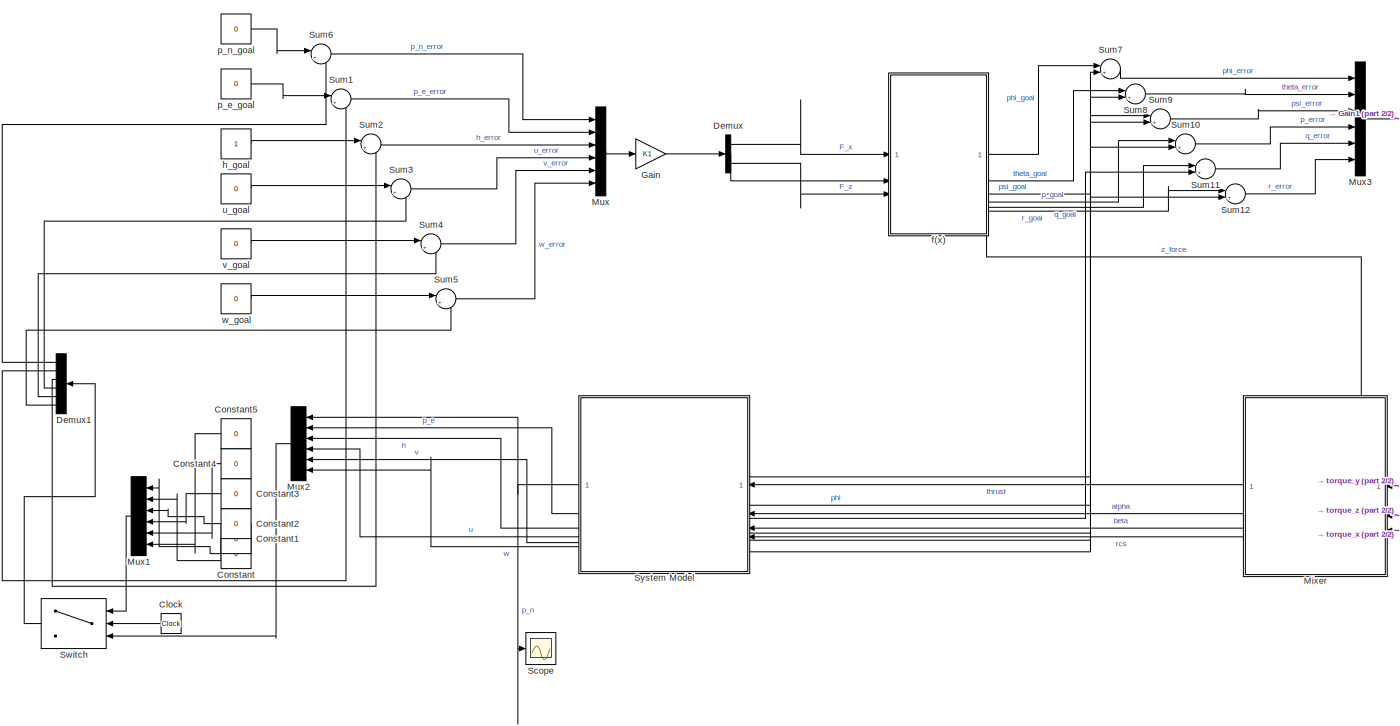
[diagram: root canvas - part 1/2, most of the canvas]
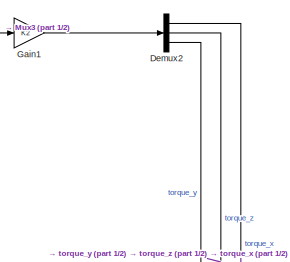
[diagram: root canvas - part 2/2, top right region]
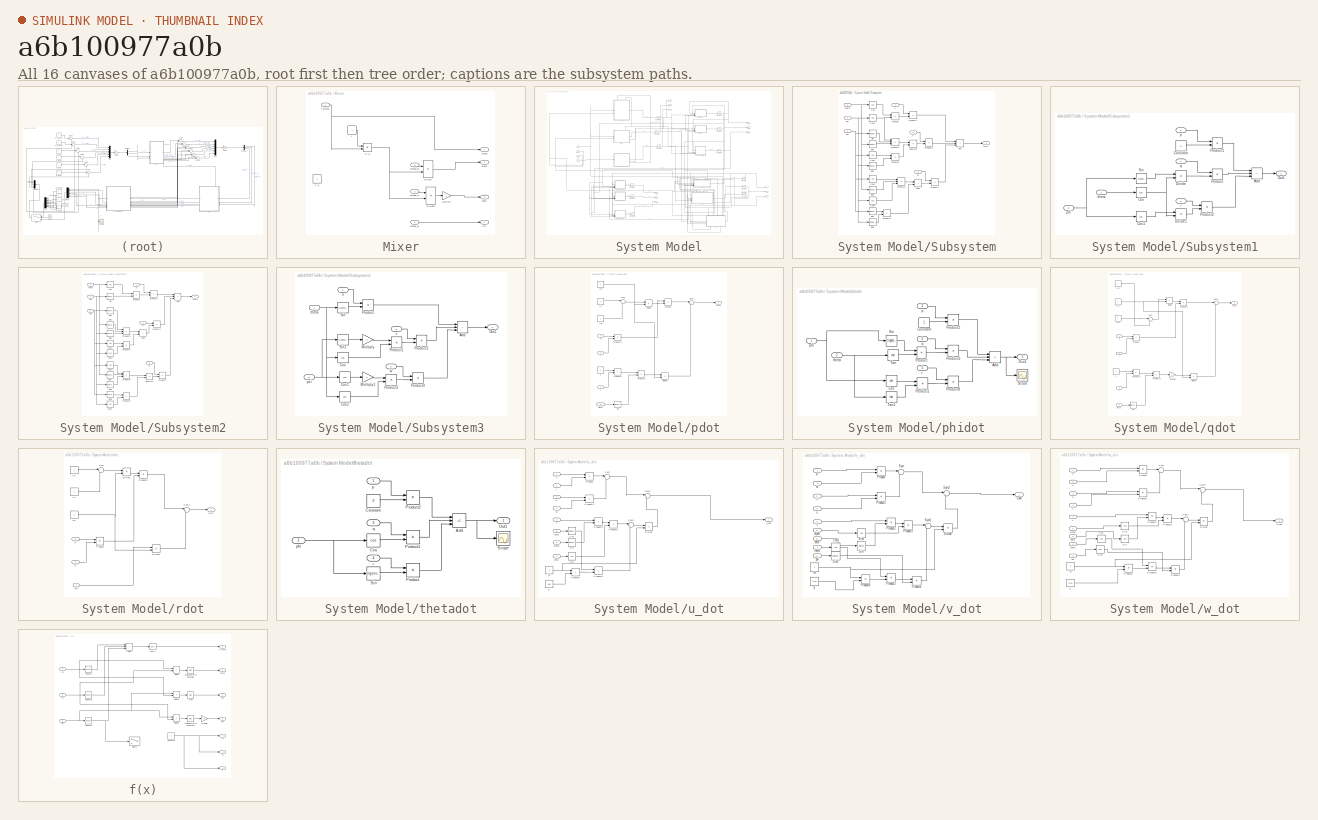
[diagram: thumbnail index - all 16 canvases of the model, root first then tree order]
MODEL slx_a6b100977a0b
KIND model
CONFIG AbsTol = auto
CONFIG EnableMultiTasking = off
CONFIG FixedStep = auto
CONFIG MaxStep = auto
CONFIG MinStep = auto
CONFIG RelTol = 1e-3
CONFIG SampleTimeConstraint = Unconstrained
CONFIG SolverName = VariableStepAuto
CONFIG StartTime = 0.0
CONFIG StopTime = 10.0
BLOCK [Clock] Clock
  NameLocation = top
BLOCK [Constant] Constant
  NameLocation = top
  Value = 0
BLOCK [Constant] Constant1
  NameLocation = top
  Value = 0
BLOCK [Constant] Constant2
  NameLocation = top
  Value = 0
BLOCK [Constant] Constant3
  NameLocation = top
  Value = 0
BLOCK [Constant] Constant4
  NameLocation = top
  Value = 0
BLOCK [Constant] Constant5
  NameLocation = top
  Value = 0
BLOCK [Demux] Demux
  Outputs = 3
BLOCK [Demux] Demux1
  NameLocation = top
  Outputs = 6
BLOCK [Demux] Demux2
  Outputs = 3
BLOCK [Gain] Gain
  Gain = K1
  Multiplication = Matrix(K*u)
BLOCK [Gain] Gain1
  Gain = K2
  Multiplication = Matrix(K*u)
BLOCK [SubSystem] Mixer
  PortSchema = {"entries":[{"content":{"sides":[{"content":{"connectorIds":["In1","In2","In3"]},"type":"ConnectorPlacement.EquallySpacedRectSide","uuid":"e4ab6201-3171-425b-b678-f5a82ca77998"},{"content":{"connectorIds":["Out1","Out2","Out3","Out4"],"side":"RIGHT"},"type":"ConnectorPlacement.EquallySpacedRectSide","uuid":"c6aae40c-8090-4a79-98d3-b60c0d3e66c5"},{"content":{"connectorIds":["In4"],"side":"TOP"},"ty...<+278ch>
BLOCK [Product] Mixer/Divide
  Inputs = */
BLOCK [Product] Mixer/Divide1
  Inputs = */
BLOCK [Constant] Mixer/L
BLOCK [Product] Mixer/LT_0
BLOCK [Gain] Mixer/Multiply
  Gain = -1
BLOCK [Constant] Mixer/T_0
BLOCK [Outport] Mixer/alpha
  Port = 2
BLOCK [Outport] Mixer/beta
  Port = 3
BLOCK [Outport] Mixer/rcs
  Port = 4
BLOCK [Outport] Mixer/thrust
BLOCK [Inport] Mixer/torque_x1
  Port = 3
BLOCK [Inport] Mixer/torque_y1
  Port = 2
BLOCK [Inport] Mixer/torque_z1
BLOCK [Inport] Mixer/z_force1
  Port = 4
BLOCK [Mux] Mux
  DisplayOption = bar
  Inputs = 6
BLOCK [Mux] Mux1
  DisplayOption = bar
  Inputs = 6
  NameLocation = top
BLOCK [Mux] Mux2
  DisplayOption = bar
  Inputs = 6
  NameLocation = top
BLOCK [Mux] Mux3
  DisplayOption = bar
  Inputs = 6
BLOCK [Scope] Scope
  Floating = off
  NumInputPorts = 1
  ScopeSpecificationString = Simulink.scopes.TimeScopeBlockCfg('CurrentConfiguration', extmgr.ConfigurationSet(extmgr.Configuration('Core','General UI',true),extmgr.Configuration('Core','Source UI',true),extmgr.Configuration('Sources','WiredSimulink',true,'DataLoggingVariableName','ScopeData1'),extmgr.Configuration('Visuals','Time Domain',true,'SerializedDisplays',{struct('MinYLimReal','-1.00000','MaxYLimReal','1.00000','YLab...<+1504ch>
BLOCK [Sum] Sum1
  Inputs = |+-
BLOCK [Sum] Sum10
  Inputs = |+-
BLOCK [Sum] Sum11
  Inputs = |+-
BLOCK [Sum] Sum12
  Inputs = |+-
BLOCK [Sum] Sum2
  Inputs = |+-
BLOCK [Sum] Sum3
  Inputs = |+-
BLOCK [Sum] Sum4
  Inputs = |+-
BLOCK [Sum] Sum5
  Inputs = |+-
BLOCK [Sum] Sum6
  Inputs = |+-
BLOCK [Sum] Sum7
  Inputs = |+-
BLOCK [Sum] Sum8
  Inputs = |+-
BLOCK [Sum] Sum9
  Inputs = |+-
BLOCK [Switch] Switch
  Criteria = u2 > Threshold
  InputSameDT = off
  NameLocation = top
  SaturateOnIntegerOverflow = off
  Threshold = 0.1
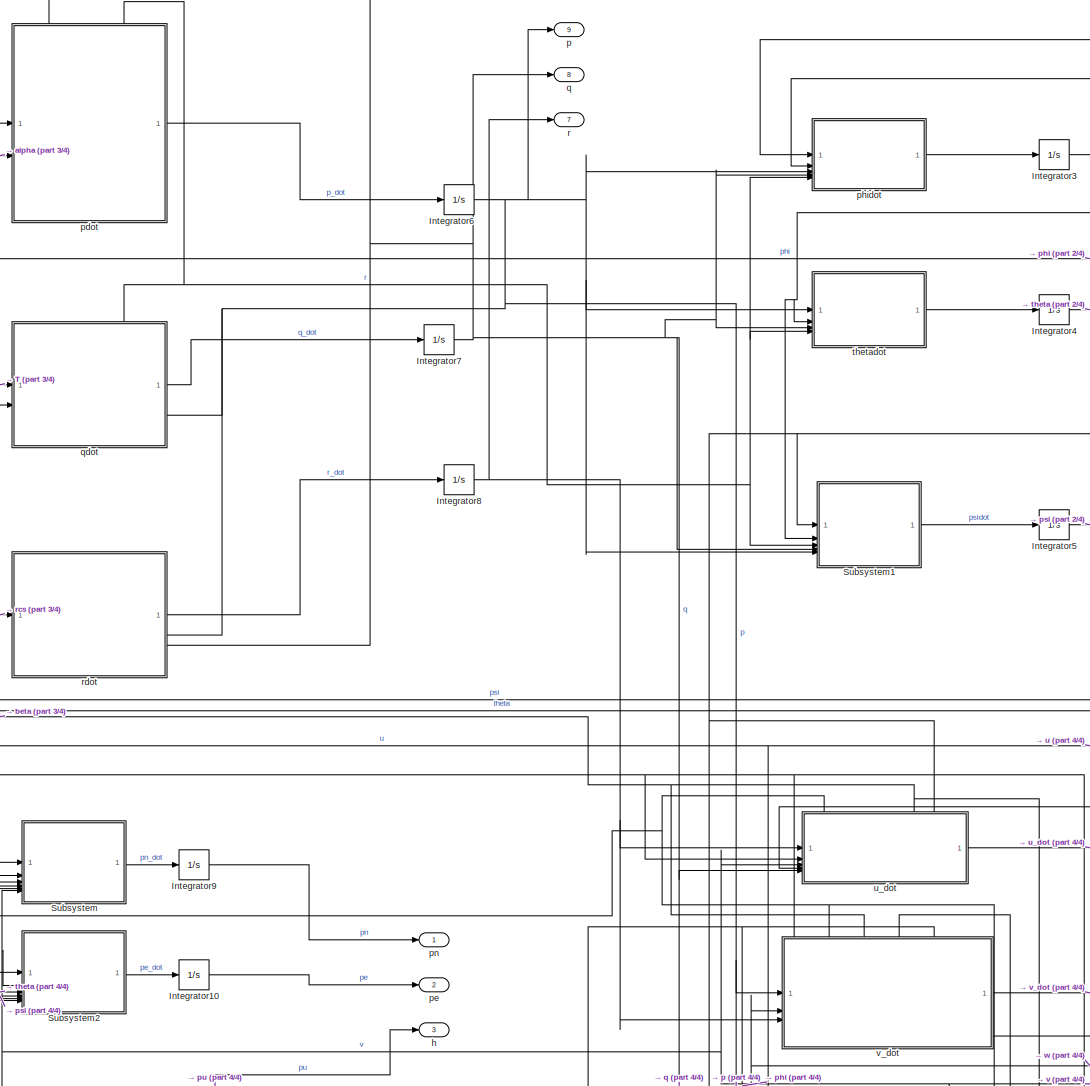
[diagram: System Model - part 1/4, center side, full height]
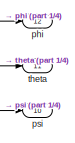
[diagram: System Model - part 2/4, top right region]
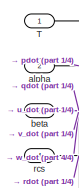
[diagram: System Model - part 3/4, middle left region]
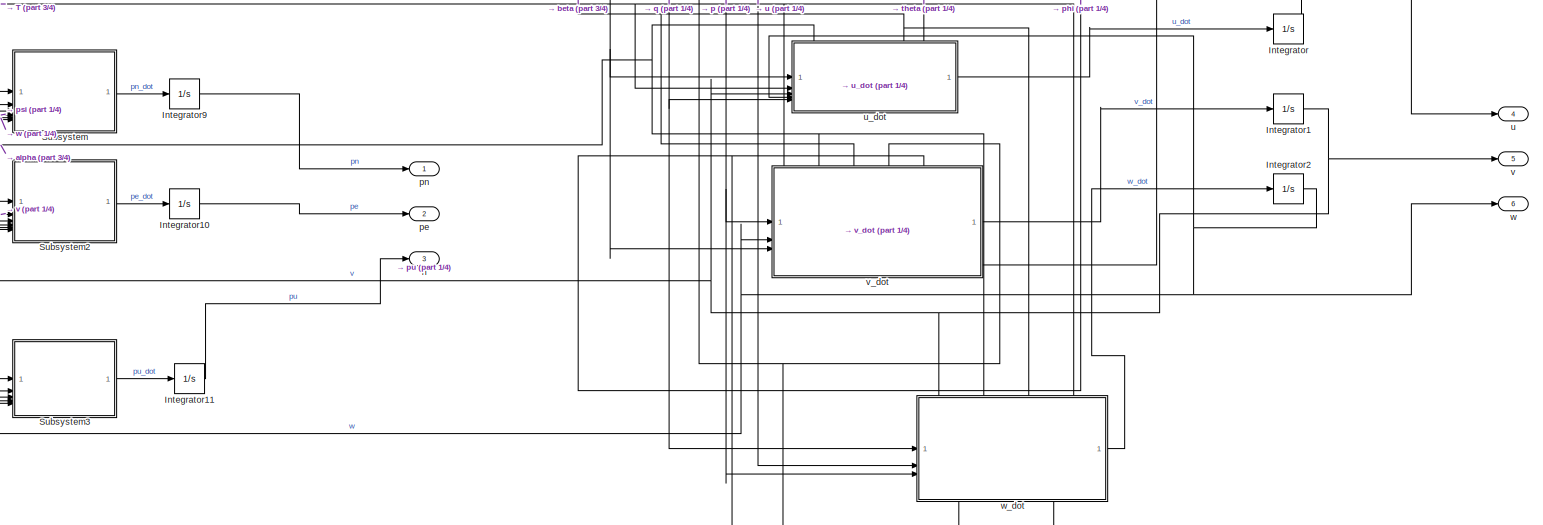
[diagram: System Model - part 4/4, bottom center region]
BLOCK [SubSystem] System Model
  PortSchema = {"entries":[{"content":{"sides":[{"content":{"connectorIds":["In1","In2","In3","In4"]},"type":"ConnectorPlacement.EquallySpacedRectSide","uuid":"8f145699-554a-4db3-b510-041d1b7c630e"},{"content":{"connectorIds":["Out1","Out2","Out3","Out4","Out5","Out6"],"side":"RIGHT"},"type":"ConnectorPlacement.EquallySpacedRectSide","uuid":"6b085f61-d2ca-4739-902a-7b977a4f8bfa"},{"content":{"connectorIds":["Out...<+337ch>
BLOCK [Integrator] System Model/Integrator
BLOCK [Integrator] System Model/Integrator1
BLOCK [Integrator] System Model/Integrator10
BLOCK [Integrator] System Model/Integrator11
BLOCK [Integrator] System Model/Integrator2
BLOCK [Integrator] System Model/Integrator3
BLOCK [Integrator] System Model/Integrator4
BLOCK [Integrator] System Model/Integrator5
BLOCK [Integrator] System Model/Integrator6
BLOCK [Integrator] System Model/Integrator7
BLOCK [Integrator] System Model/Integrator8
BLOCK [Integrator] System Model/Integrator9
BLOCK [SubSystem] System Model/Subsystem
BLOCK [Sum] System Model/Subsystem/Add
  IconShape = rectangular
  Inputs = +++
BLOCK [Sum] System Model/Subsystem/Add1
  IconShape = rectangular
BLOCK [Trigonometry] System Model/Subsystem/Cos
  Operator = cos
BLOCK [Trigonometry] System Model/Subsystem/Cos1
  Operator = cos
BLOCK [Trigonometry] System Model/Subsystem/Cos2
  Operator = cos
BLOCK [Trigonometry] System Model/Subsystem/Cos3
  Operator = cos
BLOCK [Trigonometry] System Model/Subsystem/Cos4
  Operator = cos
BLOCK [Outport] System Model/Subsystem/Out1
BLOCK [Product] System Model/Subsystem/Product
BLOCK [Product] System Model/Subsystem/Product1
BLOCK [Product] System Model/Subsystem/Product2
  Inputs = 3
BLOCK [Product] System Model/Subsystem/Product3
BLOCK [Product] System Model/Subsystem/Product4
BLOCK [Product] System Model/Subsystem/Product5
  Inputs = 3
BLOCK [Product] System Model/Subsystem/Product6
BLOCK [Product] System Model/Subsystem/Product7
BLOCK [Trigonometry] System Model/Subsystem/Sin
BLOCK [Trigonometry] System Model/Subsystem/Sin1
BLOCK [Trigonometry] System Model/Subsystem/Sin2
BLOCK [Trigonometry] System Model/Subsystem/Sin3
BLOCK [Trigonometry] System Model/Subsystem/Sin4
BLOCK [Trigonometry] System Model/Subsystem/Sin5
BLOCK [Sum] System Model/Subsystem/Subtract
  IconShape = rectangular
  Inputs = +-
BLOCK [Inport] System Model/Subsystem/phi
  Port = 3
BLOCK [Inport] System Model/Subsystem/psi
  Port = 4
BLOCK [Inport] System Model/Subsystem/theta
  Port = 2
BLOCK [Inport] System Model/Subsystem/u
BLOCK [Inport] System Model/Subsystem/v
  Port = 6
BLOCK [Inport] System Model/Subsystem/w
  Port = 5
BLOCK [SubSystem] System Model/Subsystem1
BLOCK [Sum] System Model/Subsystem1/Add
  IconShape = rectangular
  Inputs = +++
BLOCK [Constant] System Model/Subsystem1/Constant
  Value = 0
BLOCK [Trigonometry] System Model/Subsystem1/Cos
  Operator = cos
BLOCK [Trigonometry] System Model/Subsystem1/Cos1
  Operator = cos
BLOCK [Product] System Model/Subsystem1/Divide
  Inputs = */
BLOCK [Product] System Model/Subsystem1/Divide1
  Inputs = */
BLOCK [Outport] System Model/Subsystem1/Out1
BLOCK [Product] System Model/Subsystem1/Product
BLOCK [Product] System Model/Subsystem1/Product1
BLOCK [Product] System Model/Subsystem1/Product2
BLOCK [Trigonometry] System Model/Subsystem1/Sin
BLOCK [Inport] System Model/Subsystem1/p
  Port = 5
BLOCK [Inport] System Model/Subsystem1/phi
  Port = 2
BLOCK [Inport] System Model/Subsystem1/q
  Port = 4
BLOCK [Inport] System Model/Subsystem1/r
  Port = 3
BLOCK [Inport] System Model/Subsystem1/theta
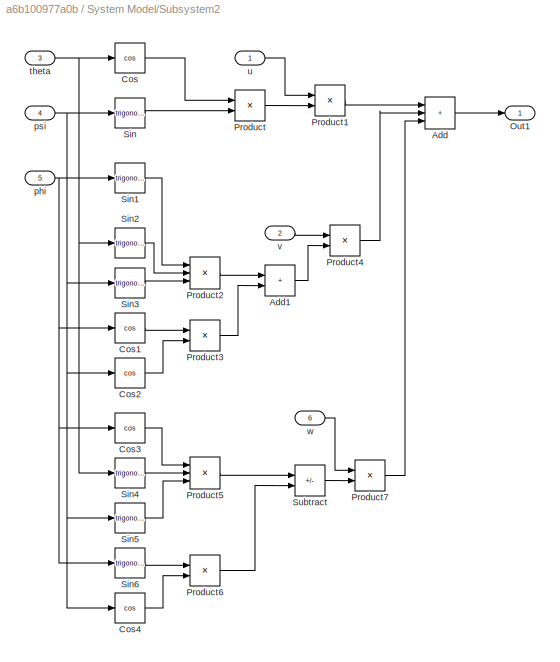
BLOCK [SubSystem] System Model/Subsystem2
BLOCK [Sum] System Model/Subsystem2/Add
  IconShape = rectangular
  Inputs = +++
BLOCK [Sum] System Model/Subsystem2/Add1
  IconShape = rectangular
BLOCK [Trigonometry] System Model/Subsystem2/Cos
  Operator = cos
BLOCK [Trigonometry] System Model/Subsystem2/Cos1
  Operator = cos
BLOCK [Trigonometry] System Model/Subsystem2/Cos2
  Operator = cos
BLOCK [Trigonometry] System Model/Subsystem2/Cos3
  Operator = cos
BLOCK [Trigonometry] System Model/Subsystem2/Cos4
  Operator = cos
BLOCK [Outport] System Model/Subsystem2/Out1
BLOCK [Product] System Model/Subsystem2/Product
BLOCK [Product] System Model/Subsystem2/Product1
BLOCK [Product] System Model/Subsystem2/Product2
  Inputs = 3
BLOCK [Product] System Model/Subsystem2/Product3
BLOCK [Product] System Model/Subsystem2/Product4
BLOCK [Product] System Model/Subsystem2/Product5
  Inputs = 3
BLOCK [Product] System Model/Subsystem2/Product6
BLOCK [Product] System Model/Subsystem2/Product7
BLOCK [Trigonometry] System Model/Subsystem2/Sin
BLOCK [Trigonometry] System Model/Subsystem2/Sin1
BLOCK [Trigonometry] System Model/Subsystem2/Sin2
BLOCK [Trigonometry] System Model/Subsystem2/Sin3
BLOCK [Trigonometry] System Model/Subsystem2/Sin4
BLOCK [Trigonometry] System Model/Subsystem2/Sin5
BLOCK [Trigonometry] System Model/Subsystem2/Sin6
BLOCK [Sum] System Model/Subsystem2/Subtract
  IconShape = rectangular
  Inputs = +-
BLOCK [Inport] System Model/Subsystem2/phi
  Port = 5
BLOCK [Inport] System Model/Subsystem2/psi
  Port = 4
BLOCK [Inport] System Model/Subsystem2/theta
  Port = 3
BLOCK [Inport] System Model/Subsystem2/u
BLOCK [Inport] System Model/Subsystem2/v
  Port = 2
BLOCK [Inport] System Model/Subsystem2/w
  Port = 6
BLOCK [SubSystem] System Model/Subsystem3
BLOCK [Sum] System Model/Subsystem3/Add
  IconShape = rectangular
  Inputs = +++
BLOCK [Trigonometry] System Model/Subsystem3/Cos
  Operator = cos
BLOCK [Trigonometry] System Model/Subsystem3/Cos1
  Operator = cos
BLOCK [Trigonometry] System Model/Subsystem3/Cos2
  Operator = cos
BLOCK [Gain] System Model/Subsystem3/Multiply
  Gain = -1
BLOCK [Gain] System Model/Subsystem3/Multiply1
  Gain = -1
BLOCK [Outport] System Model/Subsystem3/Out1
BLOCK [Product] System Model/Subsystem3/Product
BLOCK [Product] System Model/Subsystem3/Product1
BLOCK [Product] System Model/Subsystem3/Product2
BLOCK [Product] System Model/Subsystem3/Product3
BLOCK [Product] System Model/Subsystem3/Product4
BLOCK [Trigonometry] System Model/Subsystem3/Sin
BLOCK [Trigonometry] System Model/Subsystem3/Sin1
BLOCK [Inport] System Model/Subsystem3/psi
  Port = 5
BLOCK [Inport] System Model/Subsystem3/theta
BLOCK [Inport] System Model/Subsystem3/u
  Port = 4
BLOCK [Inport] System Model/Subsystem3/v
  Port = 3
BLOCK [Inport] System Model/Subsystem3/w
  Port = 2
BLOCK [Inport] System Model/T
BLOCK [Inport] System Model/alpha
  Port = 2
BLOCK [Inport] System Model/beta
  Port = 3
BLOCK [Outport] System Model/h
  Port = 3
BLOCK [Outport] System Model/p
  Port = 9
BLOCK [SubSystem] System Model/pdot
  PortSchema = {"entries":[{"content":{"sides":[{"content":{"connectorIds":["In1","In2"]},"type":"ConnectorPlacement.EquallySpacedRectSide","uuid":"6ab7a4db-f82d-4cec-b306-dad3d39631b0"},{"content":{"connectorIds":["Out1"],"side":"RIGHT"},"type":"ConnectorPlacement.EquallySpacedRectSide","uuid":"9acc64a4-ce2e-4f5d-b63d-5066b3292dd6"},{"content":{"connectorIds":["In3","In4"],"side":"TOP"},"type":"ConnectorPlaceme...<+257ch>
BLOCK [Product] System Model/pdot/Divide
  Inputs = */
BLOCK [Product] System Model/pdot/Divide1
  Inputs = */
BLOCK [Constant] System Model/pdot/Ixx
BLOCK [Constant] System Model/pdot/Iyy
BLOCK [Constant] System Model/pdot/Izz
BLOCK [Constant] System Model/pdot/L
BLOCK [Outport] System Model/pdot/Out1
BLOCK [Product] System Model/pdot/Product
BLOCK [Product] System Model/pdot/Product1
BLOCK [Product] System Model/pdot/Product2
BLOCK [Product] System Model/pdot/Product3
BLOCK [Trigonometry] System Model/pdot/Sin
BLOCK [Sum] System Model/pdot/Sum
  Inputs = |+-
BLOCK [Sum] System Model/pdot/Sum1
  Inputs = |++
BLOCK [Inport] System Model/pdot/T
BLOCK [Inport] System Model/pdot/alpha
  Port = 2
BLOCK [Inport] System Model/pdot/q
  Port = 3
BLOCK [Inport] System Model/pdot/r
  Port = 4
BLOCK [Outport] System Model/pe
  Port = 2
BLOCK [Outport] System Model/phi
  Port = 12
BLOCK [SubSystem] System Model/phidot
BLOCK [Sum] System Model/phidot/Add
  IconShape = rectangular
  Inputs = +++
BLOCK [Constant] System Model/phidot/Constant
BLOCK [Trigonometry] System Model/phidot/Cos
  Operator = cos
BLOCK [Outport] System Model/phidot/Out1
BLOCK [Product] System Model/phidot/Product
BLOCK [Product] System Model/phidot/Product1
BLOCK [Product] System Model/phidot/Product2
BLOCK [Product] System Model/phidot/Product3
BLOCK [Product] System Model/phidot/Product4
BLOCK [Scope] System Model/phidot/Scope
  Floating = off
  NumInputPorts = 1
  ScopeSpecificationString = Simulink.scopes.TimeScopeBlockCfg('CurrentConfiguration', extmgr.ConfigurationSet(extmgr.Configuration('Core','General UI',true),extmgr.Configuration('Core','Source UI',true),extmgr.Configuration('Sources','WiredSimulink',true,'DataLoggingVariableName','ScopeData1'),extmgr.Configuration('Visuals','Time Domain',true),extmgr.Configuration('Tools','Plot Navigation',true),extmgr.Configuration('Tools',...<+40ch>
BLOCK [Trigonometry] System Model/phidot/Sin
BLOCK [Trigonometry] System Model/phidot/Tan
  Operator = tan
BLOCK [Trigonometry] System Model/phidot/Tan1
  Operator = tan
BLOCK [Inport] System Model/phidot/p
  Port = 3
BLOCK [Inport] System Model/phidot/phi
BLOCK [Inport] System Model/phidot/q
  Port = 4
BLOCK [Inport] System Model/phidot/r
  Port = 5
BLOCK [Inport] System Model/phidot/theta
  Port = 2
BLOCK [Outport] System Model/pn
BLOCK [Outport] System Model/psi
  Port = 10
BLOCK [Outport] System Model/q
  Port = 8
BLOCK [SubSystem] System Model/qdot
  PortSchema = {"entries":[{"content":{"sides":[{"content":{"connectorIds":["In1","In2"]},"type":"ConnectorPlacement.EquallySpacedRectSide","uuid":"6ab7a4db-f82d-4cec-b306-dad3d39631b0"},{"content":{"connectorIds":["Out1"],"side":"RIGHT"},"type":"ConnectorPlacement.EquallySpacedRectSide","uuid":"9acc64a4-ce2e-4f5d-b63d-5066b3292dd6"},{"content":{"connectorIds":["In3","In4"],"side":"TOP"},"type":"ConnectorPlaceme...<+257ch>
BLOCK [Product] System Model/qdot/Divide
  Inputs = */
BLOCK [Product] System Model/qdot/Divide1
  Inputs = */
BLOCK [Constant] System Model/qdot/Ixx
BLOCK [Constant] System Model/qdot/Iyy
BLOCK [Constant] System Model/qdot/Izz
BLOCK [Constant] System Model/qdot/L
BLOCK [Gain] System Model/qdot/Multiply
  Gain = -1
BLOCK [Outport] System Model/qdot/Out1
BLOCK [Product] System Model/qdot/Product
BLOCK [Product] System Model/qdot/Product1
BLOCK [Product] System Model/qdot/Product2
BLOCK [Product] System Model/qdot/Product3
BLOCK [Trigonometry] System Model/qdot/Sin
BLOCK [Sum] System Model/qdot/Sum
  Inputs = |+-
BLOCK [Sum] System Model/qdot/Sum1
  Inputs = |++
BLOCK [Inport] System Model/qdot/T
BLOCK [Inport] System Model/qdot/beta
  Port = 2
BLOCK [Inport] System Model/qdot/p
  Port = 3
BLOCK [Inport] System Model/qdot/r
  Port = 4
BLOCK [Outport] System Model/r
  Port = 7
BLOCK [Inport] System Model/rcs
  Port = 4
BLOCK [SubSystem] System Model/rdot
  PortSchema = {"entries":[{"content":{"sides":[{"content":{"connectorIds":["In1"]},"type":"ConnectorPlacement.EquallySpacedRectSide","uuid":"6ab7a4db-f82d-4cec-b306-dad3d39631b0"},{"content":{"connectorIds":["Out1"],"side":"RIGHT"},"type":"ConnectorPlacement.EquallySpacedRectSide","uuid":"9acc64a4-ce2e-4f5d-b63d-5066b3292dd6"},{"content":{"connectorIds":["In2","In3"],"side":"TOP"},"type":"ConnectorPlacement.Equ...<+251ch>
BLOCK [Product] System Model/rdot/Divide
  Inputs = */
BLOCK [Product] System Model/rdot/Divide1
  Inputs = */
BLOCK [Constant] System Model/rdot/Ixx
BLOCK [Constant] System Model/rdot/Iyy
BLOCK [Constant] System Model/rdot/Izz
BLOCK [Outport] System Model/rdot/Out1
BLOCK [Product] System Model/rdot/Product
BLOCK [Product] System Model/rdot/Product1
BLOCK [Sum] System Model/rdot/Sum
  Inputs = |+-
BLOCK [Sum] System Model/rdot/Sum1
  Inputs = |++
BLOCK [Inport] System Model/rdot/p
  Port = 2
BLOCK [Inport] System Model/rdot/q
  Port = 3
BLOCK [Inport] System Model/rdot/rcs
BLOCK [Outport] System Model/theta
  Port = 11
BLOCK [SubSystem] System Model/thetadot
BLOCK [Sum] System Model/thetadot/Add
  IconShape = rectangular
  Inputs = ++-
BLOCK [Constant] System Model/thetadot/Constant
  Value = 0
BLOCK [Trigonometry] System Model/thetadot/Cos
  Operator = cos
BLOCK [Outport] System Model/thetadot/Out1
BLOCK [Product] System Model/thetadot/Product
BLOCK [Product] System Model/thetadot/Product1
BLOCK [Product] System Model/thetadot/Product2
BLOCK [Scope] System Model/thetadot/Scope
  Floating = off
  NumInputPorts = 1
  ScopeSpecificationString = Simulink.scopes.TimeScopeBlockCfg('CurrentConfiguration', extmgr.ConfigurationSet(extmgr.Configuration('Core','General UI',true),extmgr.Configuration('Core','Source UI',true),extmgr.Configuration('Sources','WiredSimulink',true,'DataLoggingVariableName','ScopeData2'),extmgr.Configuration('Visuals','Time Domain',true),extmgr.Configuration('Tools','Plot Navigation',true),extmgr.Configuration('Tools',...<+40ch>
BLOCK [Trigonometry] System Model/thetadot/Sin
BLOCK [Inport] System Model/thetadot/p
BLOCK [Inport] System Model/thetadot/phi
  Port = 2
BLOCK [Inport] System Model/thetadot/q
  Port = 3
BLOCK [Inport] System Model/thetadot/r
  Port = 4
BLOCK [Outport] System Model/u
  Port = 4
BLOCK [SubSystem] System Model/u_dot
  PortSchema = {"entries":[{"content":{"sides":[{"content":{"connectorIds":["In1","In2","In3","In4","In5"]},"type":"ConnectorPlacement.EquallySpacedRectSide","uuid":"64eef309-b73c-48da-be96-ce790931dba8"},{"content":{"connectorIds":["Out1"],"side":"RIGHT"},"type":"ConnectorPlacement.EquallySpacedRectSide","uuid":"ffd61837-7847-4a6b-9743-1cbc97c13cef"},{"content":{"connectorIds":["In6","In7","In8"],"side":"TOP"},...<+281ch>
BLOCK [Trigonometry] System Model/u_dot/Cos
  Operator = cos
BLOCK [Product] System Model/u_dot/Divide
  Inputs = */
BLOCK [Product] System Model/u_dot/Product
BLOCK [Product] System Model/u_dot/Product1
BLOCK [Product] System Model/u_dot/Product2
BLOCK [Product] System Model/u_dot/Product3
BLOCK [Product] System Model/u_dot/Product4
BLOCK [Product] System Model/u_dot/Product5
BLOCK [Trigonometry] System Model/u_dot/Sin
BLOCK [Trigonometry] System Model/u_dot/Sin1
BLOCK [Sum] System Model/u_dot/Sum
  Inputs = |+-
BLOCK [Sum] System Model/u_dot/Sum1
  Inputs = |+-
BLOCK [Sum] System Model/u_dot/Sum2
  Inputs = |++
BLOCK [Inport] System Model/u_dot/T
  Port = 2
BLOCK [Inport] System Model/u_dot/alpha
  Port = 6
BLOCK [Inport] System Model/u_dot/beta
  Port = 7
BLOCK [Constant] System Model/u_dot/g
  Value = 9.81
BLOCK [Constant] System Model/u_dot/m
BLOCK [Inport] System Model/u_dot/q
  Port = 5
BLOCK [Inport] System Model/u_dot/r
BLOCK [Inport] System Model/u_dot/theta
  Port = 8
BLOCK [Outport] System Model/u_dot/u_dot
BLOCK [Inport] System Model/u_dot/v
  Port = 3
BLOCK [Inport] System Model/u_dot/w
  Port = 4
BLOCK [Outport] System Model/v
  Port = 5
BLOCK [SubSystem] System Model/v_dot
  PortSchema = {"entries":[{"content":{"sides":[{"content":{"connectorIds":["In1","In2","In3"]},"type":"ConnectorPlacement.EquallySpacedRectSide","uuid":"a4e0a5eb-8103-4107-8c28-a650b6e2a478"},{"content":{"connectorIds":["Out1"],"side":"RIGHT"},"type":"ConnectorPlacement.EquallySpacedRectSide","uuid":"35fa197a-615e-40cd-8bc5-f0655a9643f8"},{"content":{"connectorIds":["In4","In5","In6","In7","In8","In9"],"side":"...<+413ch>
BLOCK [Trigonometry] System Model/v_dot/Cos
  Operator = cos
BLOCK [Product] System Model/v_dot/Divide
  Inputs = */
BLOCK [Product] System Model/v_dot/Product
BLOCK [Product] System Model/v_dot/Product1
BLOCK [Product] System Model/v_dot/Product2
BLOCK [Product] System Model/v_dot/Product3
BLOCK [Product] System Model/v_dot/Product4
BLOCK [Product] System Model/v_dot/Product5
BLOCK [Product] System Model/v_dot/Product6
BLOCK [Trigonometry] System Model/v_dot/Sin
BLOCK [Trigonometry] System Model/v_dot/Sin1
  Operator = cos
BLOCK [Trigonometry] System Model/v_dot/Sin2
BLOCK [Sum] System Model/v_dot/Sum
  Inputs = |+-
BLOCK [Sum] System Model/v_dot/Sum1
  Inputs = |+-
BLOCK [Sum] System Model/v_dot/Sum2
  Inputs = |++
BLOCK [Inport] System Model/v_dot/T
  Port = 4
BLOCK [Inport] System Model/v_dot/alpha
  Port = 5
BLOCK [Inport] System Model/v_dot/beta
  Port = 6
BLOCK [Constant] System Model/v_dot/g
  Value = 9.81
BLOCK [Constant] System Model/v_dot/m
BLOCK [Inport] System Model/v_dot/p
BLOCK [Inport] System Model/v_dot/phi
  Port = 8
BLOCK [Inport] System Model/v_dot/r
  Port = 3
BLOCK [Inport] System Model/v_dot/theta
  Port = 7
BLOCK [Inport] System Model/v_dot/u
  Port = 9
BLOCK [Outport] System Model/v_dot/v_dot
BLOCK [Inport] System Model/v_dot/w
  Port = 2
BLOCK [Outport] System Model/w
  Port = 6
BLOCK [SubSystem] System Model/w_dot
  PortSchema = {"entries":[{"content":{"sides":[{"content":{"connectorIds":["In1","In2","In3"]},"type":"ConnectorPlacement.EquallySpacedRectSide","uuid":"a4e0a5eb-8103-4107-8c28-a650b6e2a478"},{"content":{"connectorIds":["Out1"],"side":"RIGHT"},"type":"ConnectorPlacement.EquallySpacedRectSide","uuid":"35fa197a-615e-40cd-8bc5-f0655a9643f8"},{"content":{"connectorIds":["In4","In5","In6","In7"],"side":"TOP"},"type"...<+430ch>
BLOCK [Trigonometry] System Model/w_dot/Cos
  Operator = cos
BLOCK [Product] System Model/w_dot/Divide
  Inputs = */
BLOCK [Product] System Model/w_dot/Product
BLOCK [Product] System Model/w_dot/Product1
BLOCK [Product] System Model/w_dot/Product2
BLOCK [Product] System Model/w_dot/Product3
BLOCK [Product] System Model/w_dot/Product4
BLOCK [Product] System Model/w_dot/Product5
BLOCK [Product] System Model/w_dot/Product6
BLOCK [Trigonometry] System Model/w_dot/Sin
  Operator = cos
BLOCK [Trigonometry] System Model/w_dot/Sin1
  Operator = cos
BLOCK [Trigonometry] System Model/w_dot/Sin2
  Operator = cos
BLOCK [Sum] System Model/w_dot/Sum
  Inputs = |+-
BLOCK [Sum] System Model/w_dot/Sum1
  Inputs = |+-
BLOCK [Sum] System Model/w_dot/Sum2
  Inputs = |++
BLOCK [Inport] System Model/w_dot/T
  Port = 7
BLOCK [Inport] System Model/w_dot/alpha
  Port = 5
BLOCK [Inport] System Model/w_dot/beta
  Port = 6
BLOCK [Constant] System Model/w_dot/g
  Value = 9.81
BLOCK [Constant] System Model/w_dot/m
BLOCK [Inport] System Model/w_dot/p
  Port = 3
BLOCK [Inport] System Model/w_dot/phi
  Port = 9
BLOCK [Inport] System Model/w_dot/q
BLOCK [Inport] System Model/w_dot/theta
  Port = 8
BLOCK [Inport] System Model/w_dot/u
  Port = 2
BLOCK [Inport] System Model/w_dot/v
  Port = 4
BLOCK [Outport] System Model/w_dot/w_dot
BLOCK [SubSystem] f(x)
  PortSchema = {"entries":[{"content":{"sides":[{"content":{"connectorIds":["In1","In2","In3"]},"type":"ConnectorPlacement.EquallySpacedRectSide","uuid":"e7aeffbb-634f-4153-9868-9d3e2e4280ad"},{"content":{"connectorIds":["Out1","Out2","Out3","Out4","Out5","Out6"],"side":"RIGHT"},"type":"ConnectorPlacement.EquallySpacedRectSide","uuid":"e6d97028-2a10-4268-a5e2-55bbdc39a0c5"},{"content":{"side":"TOP"},"type":"Conn...<+419ch>
BLOCK [Sum] f(x)/Add2
  IconShape = rectangular
  Inputs = +++
BLOCK [Trigonometry] f(x)/Atan
  Operator = atan
BLOCK [Constant] f(x)/Constant
  Value = 0
BLOCK [Product] f(x)/Divide
  Inputs = */
BLOCK [Product] f(x)/Divide1
  Inputs = */
BLOCK [Product] f(x)/Divide2
  Inputs = */
BLOCK [Inport] f(x)/Fx
BLOCK [Inport] f(x)/Fy
  Port = 2
BLOCK [Inport] f(x)/Fz
  Port = 3
BLOCK [Gain] f(x)/Multiply
  Gain = -1
BLOCK [Sqrt] f(x)/Sqrt1
BLOCK [Math] f(x)/Square
  Operator = square
BLOCK [Math] f(x)/Square1
  Operator = square
BLOCK [Math] f(x)/Square2
  Operator = square
BLOCK [Switch] f(x)/Switch
  Criteria = u2 > Threshold
  InputSameDT = off
  SaturateOnIntegerOverflow = off
BLOCK [Trigonometry] f(x)/Trigonometric Function
  Operator = atan
BLOCK [Trigonometry] f(x)/Trigonometric Function1
  Operator = atan
BLOCK [Outport] f(x)/p
  Port = 4
BLOCK [Outport] f(x)/phi
BLOCK [Outport] f(x)/psi
  NameLocation = top
  Port = 3
BLOCK [Outport] f(x)/q
  Port = 5
BLOCK [Outport] f(x)/r
  Port = 6
BLOCK [Outport] f(x)/theta
  Port = 2
BLOCK [Outport] f(x)/z force
  Port = 7
BLOCK [Constant] h_goal
BLOCK [Constant] p_e_goal
  Value = 0
BLOCK [Constant] p_n_goal
  Value = 0
BLOCK [Constant] u_goal
  Value = 0
BLOCK [Constant] v_goal
  Value = 0
BLOCK [Constant] w_goal
  Value = 0
LINE Clock:1 -> Switch:2
LINE Constant1:1 -> Mux1:2
LINE Constant2:1 -> Mux1:3
LINE Constant3:1 -> Mux1:4
LINE Constant4:1 -> Mux1:5
LINE Constant5:1 -> Mux1:6
LINE Constant:1 -> Mux1:1
LINE Demux1:1 -> Sum6:2
LINE Demux1:2 -> Sum1:2
LINE Demux1:3 -> Sum2:2
LINE Demux1:4 -> Sum3:2
LINE Demux1:5 -> Sum4:2
LINE Demux1:6 -> Sum5:2
LINE Demux2:1 -> Mixer:3
LINE Demux2:2 -> Mixer:2
LINE Demux2:3 -> Mixer:1
LINE Demux:1 -> f(x):1
LINE Demux:2 -> f(x):2
LINE Demux:3 -> f(x):3
LINE Gain1:1 -> Demux2:1
LINE Gain:1 -> Demux:1
LINE Mixer/Divide1:1 -> Mixer/Multiply:1
LINE Mixer/Divide:1 -> Mixer/alpha:1
LINE Mixer/L:1 -> Mixer/LT_0:1
NET Mixer/LT_0:1 -> Mixer/Divide1:2, Mixer/Divide:2
LINE Mixer/Multiply:1 -> Mixer/beta:1
LINE Mixer/torque_x1:1 -> Mixer/Divide:1
LINE Mixer/torque_y1:1 -> Mixer/Divide1:1
LINE Mixer/torque_z1:1 -> Mixer/rcs:1
NET Mixer/z_force1:1 -> Mixer/LT_0:2, Mixer/thrust:1
LINE Mixer:1 -> System Model:1
LINE Mixer:2 -> System Model:2
LINE Mixer:3 -> System Model:3
LINE Mixer:4 -> System Model:4
LINE Mux1:1 -> Switch:1
LINE Mux2:1 -> Switch:3
LINE Mux3:1 -> Gain1:1
LINE Mux:1 -> Gain:1
LINE Sum10:1 -> Mux3:4
LINE Sum11:1 -> Mux3:5
LINE Sum12:1 -> Mux3:6
LINE Sum1:1 -> Mux:2
LINE Sum2:1 -> Mux:3
LINE Sum3:1 -> Mux:4
LINE Sum4:1 -> Mux:5
LINE Sum5:1 -> Mux:6
LINE Sum6:1 -> Mux:1
LINE Sum7:1 -> Mux3:1
LINE Sum8:1 -> Mux3:2
LINE Sum9:1 -> Mux3:3
LINE Switch:1 -> Demux1:1
LINE System Model/Integrator10:1 -> System Model/pe:1
LINE System Model/Integrator11:1 -> System Model/h:1
NET System Model/Integrator1:1 -> System Model/Subsystem2:2, System Model/Subsystem3:3, System Model/Subsystem:6, System Model/u_dot:3, System Model/v:1, System Model/w_dot:4
NET System Model/Integrator2:1 -> System Model/Subsystem2:6, System Model/Subsystem3:2, System Model/Subsystem:5, System Model/u_dot:4, System Model/v_dot:2, System Model/w:1
NET System Model/Integrator3:1 -> System Model/Subsystem1:2, System Model/Subsystem2:5, System Model/Subsystem:3, System Model/phi:1, System Model/phidot:1, System Model/thetadot:2, System Model/v_dot:8, System Model/w_dot:9
NET System Model/Integrator4:1 -> System Model/Subsystem1:1, System Model/Subsystem2:3, System Model/Subsystem3:1, System Model/Subsystem:2, System Model/phidot:2, System Model/theta:1, System Model/u_dot:8, System Model/v_dot:7, System Model/w_dot:8
NET System Model/Integrator5:1 -> System Model/Subsystem2:4, System Model/Subsystem3:5, System Model/Subsystem:4, System Model/psi:1
NET System Model/Integrator6:1 -> System Model/Subsystem1:5, System Model/p:1, System Model/phidot:3, System Model/qdot:3, System Model/rdot:2, System Model/thetadot:1, System Model/v_dot:1, System Model/w_dot:3
NET System Model/Integrator7:1 -> System Model/Subsystem1:4, System Model/pdot:3, System Model/phidot:4, System Model/q:1, System Model/rdot:3, System Model/thetadot:3, System Model/u_dot:5, System Model/w_dot:1
NET System Model/Integrator8:1 -> System Model/Subsystem1:3, System Model/pdot:4, System Model/phidot:5, System Model/qdot:4, System Model/r:1, System Model/thetadot:4, System Model/u_dot:1, System Model/v_dot:3
LINE System Model/Integrator9:1 -> System Model/pn:1
NET System Model/Integrator:1 -> System Model/Subsystem2:1, System Model/Subsystem3:4, System Model/Subsystem:1, System Model/u:1, System Model/v_dot:9, System Model/w_dot:2
LINE System Model/Subsystem/Add1:1 -> System Model/Subsystem/Product7:2
LINE System Model/Subsystem/Add:1 -> System Model/Subsystem/Out1:1
NET System Model/Subsystem/Cos1:1 -> System Model/Subsystem/Product2:1, System Model/Subsystem/Product:2
LINE System Model/Subsystem/Cos2:1 -> System Model/Subsystem/Product3:1
LINE System Model/Subsystem/Cos3:1 -> System Model/Subsystem/Product5:1
LINE System Model/Subsystem/Cos4:1 -> System Model/Subsystem/Product5:3
LINE System Model/Subsystem/Cos:1 -> System Model/Subsystem/Product:1
LINE System Model/Subsystem/Product1:1 -> System Model/Subsystem/Add:1
LINE System Model/Subsystem/Product2:1 -> System Model/Subsystem/Subtract:1
LINE System Model/Subsystem/Product3:1 -> System Model/Subsystem/Subtract:2
LINE System Model/Subsystem/Product4:1 -> System Model/Subsystem/Add:2
LINE System Model/Subsystem/Product5:1 -> System Model/Subsystem/Add1:1
LINE System Model/Subsystem/Product6:1 -> System Model/Subsystem/Add1:2
LINE System Model/Subsystem/Product7:1 -> System Model/Subsystem/Add:3
LINE System Model/Subsystem/Product:1 -> System Model/Subsystem/Product1:2
LINE System Model/Subsystem/Sin1:1 -> System Model/Subsystem/Product2:3
LINE System Model/Subsystem/Sin2:1 -> System Model/Subsystem/Product3:2
LINE System Model/Subsystem/Sin3:1 -> System Model/Subsystem/Product5:2
LINE System Model/Subsystem/Sin4:1 -> System Model/Subsystem/Product6:1
LINE System Model/Subsystem/Sin5:1 -> System Model/Subsystem/Product6:2
LINE System Model/Subsystem/Sin:1 -> System Model/Subsystem/Product2:2
LINE System Model/Subsystem/Subtract:1 -> System Model/Subsystem/Product4:2
NET System Model/Subsystem/phi:1 -> System Model/Subsystem/Cos2:1, System Model/Subsystem/Cos3:1, System Model/Subsystem/Sin4:1, System Model/Subsystem/Sin:1
NET System Model/Subsystem/psi:1 -> System Model/Subsystem/Cos1:1, System Model/Subsystem/Cos4:1, System Model/Subsystem/Sin2:1, System Model/Subsystem/Sin5:1
NET System Model/Subsystem/theta:1 -> System Model/Subsystem/Cos:1, System Model/Subsystem/Sin1:1, System Model/Subsystem/Sin3:1
LINE System Model/Subsystem/u:1 -> System Model/Subsystem/Product1:1
LINE System Model/Subsystem/v:1 -> System Model/Subsystem/Product4:1
LINE System Model/Subsystem/w:1 -> System Model/Subsystem/Product7:1
LINE System Model/Subsystem1/Add:1 -> System Model/Subsystem1/Out1:1
LINE System Model/Subsystem1/Constant:1 -> System Model/Subsystem1/Product1:2
LINE System Model/Subsystem1/Cos1:1 -> System Model/Subsystem1/Divide1:1
NET System Model/Subsystem1/Cos:1 -> System Model/Subsystem1/Divide1:2, System Model/Subsystem1/Divide:2
LINE System Model/Subsystem1/Divide1:1 -> System Model/Subsystem1/Product2:2
LINE System Model/Subsystem1/Divide:1 -> System Model/Subsystem1/Product:2
LINE System Model/Subsystem1/Product1:1 -> System Model/Subsystem1/Add:1
LINE System Model/Subsystem1/Product2:1 -> System Model/Subsystem1/Add:3
LINE System Model/Subsystem1/Product:1 -> System Model/Subsystem1/Add:2
LINE System Model/Subsystem1/Sin:1 -> System Model/Subsystem1/Divide:1
LINE System Model/Subsystem1/p:1 -> System Model/Subsystem1/Product1:1
NET System Model/Subsystem1/phi:1 -> System Model/Subsystem1/Cos1:1, System Model/Subsystem1/Sin:1
LINE System Model/Subsystem1/q:1 -> System Model/Subsystem1/Product:1
LINE System Model/Subsystem1/r:1 -> System Model/Subsystem1/Product2:1
LINE System Model/Subsystem1/theta:1 -> System Model/Subsystem1/Cos:1
LINE System Model/Subsystem1:1 -> System Model/Integrator5:1
LINE System Model/Subsystem2/Add1:1 -> System Model/Subsystem2/Product4:2
LINE System Model/Subsystem2/Add:1 -> System Model/Subsystem2/Out1:1
LINE System Model/Subsystem2/Cos1:1 -> System Model/Subsystem2/Product3:1
LINE System Model/Subsystem2/Cos2:1 -> System Model/Subsystem2/Product3:2
LINE System Model/Subsystem2/Cos3:1 -> System Model/Subsystem2/Product5:1
LINE System Model/Subsystem2/Cos4:1 -> System Model/Subsystem2/Product6:2
LINE System Model/Subsystem2/Cos:1 -> System Model/Subsystem2/Product:1
LINE System Model/Subsystem2/Product1:1 -> System Model/Subsystem2/Add:1
LINE System Model/Subsystem2/Product2:1 -> System Model/Subsystem2/Add1:1
LINE System Model/Subsystem2/Product3:1 -> System Model/Subsystem2/Add1:2
LINE System Model/Subsystem2/Product4:1 -> System Model/Subsystem2/Add:2
LINE System Model/Subsystem2/Product5:1 -> System Model/Subsystem2/Subtract:1
LINE System Model/Subsystem2/Product6:1 -> System Model/Subsystem2/Subtract:2
LINE System Model/Subsystem2/Product7:1 -> System Model/Subsystem2/Add:3
LINE System Model/Subsystem2/Product:1 -> System Model/Subsystem2/Product1:2
LINE System Model/Subsystem2/Sin1:1 -> System Model/Subsystem2/Product2:1
LINE System Model/Subsystem2/Sin2:1 -> System Model/Subsystem2/Product2:2
LINE System Model/Subsystem2/Sin3:1 -> System Model/Subsystem2/Product2:3
LINE System Model/Subsystem2/Sin4:1 -> System Model/Subsystem2/Product5:2
LINE System Model/Subsystem2/Sin5:1 -> System Model/Subsystem2/Product5:3
LINE System Model/Subsystem2/Sin6:1 -> System Model/Subsystem2/Product6:1
LINE System Model/Subsystem2/Sin:1 -> System Model/Subsystem2/Product:2
LINE System Model/Subsystem2/Subtract:1 -> System Model/Subsystem2/Product7:2
NET System Model/Subsystem2/phi:1 -> System Model/Subsystem2/Cos1:1, System Model/Subsystem2/Cos3:1, System Model/Subsystem2/Sin1:1, System Model/Subsystem2/Sin6:1
NET System Model/Subsystem2/psi:1 -> System Model/Subsystem2/Cos2:1, System Model/Subsystem2/Cos4:1, System Model/Subsystem2/Sin3:1, System Model/Subsystem2/Sin5:1, System Model/Subsystem2/Sin:1
NET System Model/Subsystem2/theta:1 -> System Model/Subsystem2/Cos:1, System Model/Subsystem2/Sin2:1, System Model/Subsystem2/Sin4:1
LINE System Model/Subsystem2/u:1 -> System Model/Subsystem2/Product1:1
LINE System Model/Subsystem2/v:1 -> System Model/Subsystem2/Product4:1
LINE System Model/Subsystem2/w:1 -> System Model/Subsystem2/Product7:1
LINE System Model/Subsystem2:1 -> System Model/Integrator10:1
LINE System Model/Subsystem3/Add:1 -> System Model/Subsystem3/Out1:1
LINE System Model/Subsystem3/Cos1:1 -> System Model/Subsystem3/Multiply1:1
LINE System Model/Subsystem3/Cos2:1 -> System Model/Subsystem3/Product3:2
LINE System Model/Subsystem3/Cos:1 -> System Model/Subsystem3/Product1:2
LINE System Model/Subsystem3/Multiply1:1 -> System Model/Subsystem3/Product3:1
LINE System Model/Subsystem3/Multiply:1 -> System Model/Subsystem3/Product1:1
LINE System Model/Subsystem3/Product1:1 -> System Model/Subsystem3/Product2:2
LINE System Model/Subsystem3/Product2:1 -> System Model/Subsystem3/Add:2
LINE System Model/Subsystem3/Product3:1 -> System Model/Subsystem3/Product4:2
LINE System Model/Subsystem3/Product4:1 -> System Model/Subsystem3/Add:3
LINE System Model/Subsystem3/Product:1 -> System Model/Subsystem3/Add:1
LINE System Model/Subsystem3/Sin1:1 -> System Model/Subsystem3/Multiply:1
LINE System Model/Subsystem3/Sin:1 -> System Model/Subsystem3/Product:2
NET System Model/Subsystem3/psi:1 -> System Model/Subsystem3/Cos1:1, System Model/Subsystem3/Sin1:1
NET System Model/Subsystem3/theta:1 -> System Model/Subsystem3/Cos2:1, System Model/Subsystem3/Cos:1, System Model/Subsystem3/Sin:1
LINE System Model/Subsystem3/u:1 -> System Model/Subsystem3/Product:1
LINE System Model/Subsystem3/v:1 -> System Model/Subsystem3/Product2:1
LINE System Model/Subsystem3/w:1 -> System Model/Subsystem3/Product4:1
LINE System Model/Subsystem3:1 -> System Model/Integrator11:1
LINE System Model/Subsystem:1 -> System Model/Integrator9:1
NET System Model/T:1 -> System Model/pdot:1, System Model/qdot:1, System Model/u_dot:2, System Model/v_dot:4, System Model/w_dot:7
NET System Model/alpha:1 -> System Model/pdot:2, System Model/u_dot:6, System Model/v_dot:5, System Model/w_dot:5
NET System Model/beta:1 -> System Model/qdot:2, System Model/u_dot:7, System Model/v_dot:6, System Model/w_dot:6
LINE System Model/pdot/Divide1:1 -> System Model/pdot/Sum1:2
LINE System Model/pdot/Divide:1 -> System Model/pdot/Product:2
NET System Model/pdot/Ixx:1 -> System Model/pdot/Divide1:2, System Model/pdot/Divide:2
LINE System Model/pdot/Iyy:1 -> System Model/pdot/Sum:1
LINE System Model/pdot/Izz:1 -> System Model/pdot/Sum:2
LINE System Model/pdot/L:1 -> System Model/pdot/Product2:1
LINE System Model/pdot/Product1:1 -> System Model/pdot/Product:1
LINE System Model/pdot/Product2:1 -> System Model/pdot/Product3:1
LINE System Model/pdot/Product3:1 -> System Model/pdot/Divide1:1
LINE System Model/pdot/Product:1 -> System Model/pdot/Sum1:1
LINE System Model/pdot/Sin:1 -> System Model/pdot/Product3:2
LINE System Model/pdot/Sum1:1 -> System Model/pdot/Out1:1
LINE System Model/pdot/Sum:1 -> System Model/pdot/Divide:1
LINE System Model/pdot/T:1 -> System Model/pdot/Product2:2
LINE System Model/pdot/alpha:1 -> System Model/pdot/Sin:1
LINE System Model/pdot/q:1 -> System Model/pdot/Product1:1
LINE System Model/pdot/r:1 -> System Model/pdot/Product1:2
LINE System Model/pdot:1 -> System Model/Integrator6:1
NET System Model/phidot/Add:1 -> System Model/phidot/Out1:1, System Model/phidot/Scope:1
LINE System Model/phidot/Constant:1 -> System Model/phidot/Product2:2
LINE System Model/phidot/Cos:1 -> System Model/phidot/Product1:1
LINE System Model/phidot/Product1:1 -> System Model/phidot/Product4:2
LINE System Model/phidot/Product2:1 -> System Model/phidot/Add:1
LINE System Model/phidot/Product3:1 -> System Model/phidot/Add:2
LINE System Model/phidot/Product4:1 -> System Model/phidot/Add:3
LINE System Model/phidot/Product:1 -> System Model/phidot/Product3:2
LINE System Model/phidot/Sin:1 -> System Model/phidot/Product:1
LINE System Model/phidot/Tan1:1 -> System Model/phidot/Product1:2
LINE System Model/phidot/Tan:1 -> System Model/phidot/Product:2
LINE System Model/phidot/p:1 -> System Model/phidot/Product2:1
NET System Model/phidot/phi:1 -> System Model/phidot/Cos:1, System Model/phidot/Sin:1
LINE System Model/phidot/q:1 -> System Model/phidot/Product3:1
LINE System Model/phidot/r:1 -> System Model/phidot/Product4:1
NET System Model/phidot/theta:1 -> System Model/phidot/Tan1:1, System Model/phidot/Tan:1
LINE System Model/phidot:1 -> System Model/Integrator3:1
LINE System Model/qdot/Divide1:1 -> System Model/qdot/Sum1:2
LINE System Model/qdot/Divide:1 -> System Model/qdot/Product1:1
LINE System Model/qdot/Ixx:1 -> System Model/qdot/Sum:2
NET System Model/qdot/Iyy:1 -> System Model/qdot/Divide1:2, System Model/qdot/Divide:2
LINE System Model/qdot/Izz:1 -> System Model/qdot/Sum:1
LINE System Model/qdot/L:1 -> System Model/qdot/Product2:1
LINE System Model/qdot/Multiply:1 -> System Model/qdot/Divide1:1
LINE System Model/qdot/Product1:1 -> System Model/qdot/Sum1:1
LINE System Model/qdot/Product2:1 -> System Model/qdot/Product3:1
LINE System Model/qdot/Product3:1 -> System Model/qdot/Multiply:1
LINE System Model/qdot/Product:1 -> System Model/qdot/Product1:2
LINE System Model/qdot/Sin:1 -> System Model/qdot/Product3:2
LINE System Model/qdot/Sum1:1 -> System Model/qdot/Out1:1
LINE System Model/qdot/Sum:1 -> System Model/qdot/Divide:1
LINE System Model/qdot/T:1 -> System Model/qdot/Product2:2
LINE System Model/qdot/beta:1 -> System Model/qdot/Sin:1
LINE System Model/qdot/p:1 -> System Model/qdot/Product:1
LINE System Model/qdot/r:1 -> System Model/qdot/Product:2
LINE System Model/qdot:1 -> System Model/Integrator7:1
LINE System Model/rcs:1 -> System Model/rdot:1
LINE System Model/rdot/Divide1:1 -> System Model/rdot/Sum1:2
LINE System Model/rdot/Divide:1 -> System Model/rdot/Product1:1
LINE System Model/rdot/Ixx:1 -> System Model/rdot/Sum:1
LINE System Model/rdot/Iyy:1 -> System Model/rdot/Sum:2
NET System Model/rdot/Izz:1 -> System Model/rdot/Divide1:2, System Model/rdot/Divide:2
LINE System Model/rdot/Product1:1 -> System Model/rdot/Sum1:1
LINE System Model/rdot/Product:1 -> System Model/rdot/Product1:2
LINE System Model/rdot/Sum1:1 -> System Model/rdot/Out1:1
LINE System Model/rdot/Sum:1 -> System Model/rdot/Divide:1
LINE System Model/rdot/p:1 -> System Model/rdot/Product:1
LINE System Model/rdot/q:1 -> System Model/rdot/Product:2
LINE System Model/rdot/rcs:1 -> System Model/rdot/Divide1:1
LINE System Model/rdot:1 -> System Model/Integrator8:1
NET System Model/thetadot/Add:1 -> System Model/thetadot/Out1:1, System Model/thetadot/Scope:1
LINE System Model/thetadot/Constant:1 -> System Model/thetadot/Product2:2
LINE System Model/thetadot/Cos:1 -> System Model/thetadot/Product1:2
LINE System Model/thetadot/Product1:1 -> System Model/thetadot/Add:2
LINE System Model/thetadot/Product2:1 -> System Model/thetadot/Add:1
LINE System Model/thetadot/Product:1 -> System Model/thetadot/Add:3
LINE System Model/thetadot/Sin:1 -> System Model/thetadot/Product:2
LINE System Model/thetadot/p:1 -> System Model/thetadot/Product2:1
NET System Model/thetadot/phi:1 -> System Model/thetadot/Cos:1, System Model/thetadot/Sin:1
LINE System Model/thetadot/q:1 -> System Model/thetadot/Product1:1
LINE System Model/thetadot/r:1 -> System Model/thetadot/Product:1
LINE System Model/thetadot:1 -> System Model/Integrator4:1
LINE System Model/u_dot/Cos:1 -> System Model/u_dot/Product3:2
LINE System Model/u_dot/Divide:1 -> System Model/u_dot/Sum2:2
LINE System Model/u_dot/Product1:1 -> System Model/u_dot/Sum:2
LINE System Model/u_dot/Product2:1 -> System Model/u_dot/Product3:1
LINE System Model/u_dot/Product3:1 -> System Model/u_dot/Sum1:1
LINE System Model/u_dot/Product4:1 -> System Model/u_dot/Product5:2
LINE System Model/u_dot/Product5:1 -> System Model/u_dot/Sum1:2
LINE System Model/u_dot/Product:1 -> System Model/u_dot/Sum:1
LINE System Model/u_dot/Sin1:1 -> System Model/u_dot/Product5:1
LINE System Model/u_dot/Sin:1 -> System Model/u_dot/Product2:2
LINE System Model/u_dot/Sum1:1 -> System Model/u_dot/Divide:1
LINE System Model/u_dot/Sum2:1 -> System Model/u_dot/u_dot:1
LINE System Model/u_dot/Sum:1 -> System Model/u_dot/Sum2:1
LINE System Model/u_dot/T:1 -> System Model/u_dot/Product2:1
LINE System Model/u_dot/alpha:1 -> System Model/u_dot/Sin:1
LINE System Model/u_dot/beta:1 -> System Model/u_dot/Cos:1
LINE System Model/u_dot/g:1 -> System Model/u_dot/Product4:2
NET System Model/u_dot/m:1 -> System Model/u_dot/Divide:2, System Model/u_dot/Product4:1
LINE System Model/u_dot/q:1 -> System Model/u_dot/Product1:1
LINE System Model/u_dot/r:1 -> System Model/u_dot/Product:1
LINE System Model/u_dot/theta:1 -> System Model/u_dot/Sin1:1
LINE System Model/u_dot/v:1 -> System Model/u_dot/Product:2
LINE System Model/u_dot/w:1 -> System Model/u_dot/Product1:2
LINE System Model/u_dot:1 -> System Model/Integrator:1
LINE System Model/v_dot/Cos:1 -> System Model/v_dot/Product5:1
LINE System Model/v_dot/Divide:1 -> System Model/v_dot/Sum2:2
LINE System Model/v_dot/Product1:1 -> System Model/v_dot/Sum:2
LINE System Model/v_dot/Product2:1 -> System Model/v_dot/Product3:1
LINE System Model/v_dot/Product3:1 -> System Model/v_dot/Sum1:1
LINE System Model/v_dot/Product4:1 -> System Model/v_dot/Product5:2
LINE System Model/v_dot/Product5:1 -> System Model/v_dot/Product6:1
LINE System Model/v_dot/Product6:1 -> System Model/v_dot/Sum1:2
LINE System Model/v_dot/Product:1 -> System Model/v_dot/Sum:1
LINE System Model/v_dot/Sin1:1 -> System Model/v_dot/Product3:2
LINE System Model/v_dot/Sin2:1 -> System Model/v_dot/Product6:2
LINE System Model/v_dot/Sin:1 -> System Model/v_dot/Product2:2
LINE System Model/v_dot/Sum1:1 -> System Model/v_dot/Divide:1
LINE System Model/v_dot/Sum2:1 -> System Model/v_dot/v_dot:1
LINE System Model/v_dot/Sum:1 -> System Model/v_dot/Sum2:1
LINE System Model/v_dot/T:1 -> System Model/v_dot/Product2:1
LINE System Model/v_dot/alpha:1 -> System Model/v_dot/Sin1:1
LINE System Model/v_dot/beta:1 -> System Model/v_dot/Sin:1
LINE System Model/v_dot/g:1 -> System Model/v_dot/Product4:2
NET System Model/v_dot/m:1 -> System Model/v_dot/Divide:2, System Model/v_dot/Product4:1
LINE System Model/v_dot/p:1 -> System Model/v_dot/Product:1
LINE System Model/v_dot/phi:1 -> System Model/v_dot/Sin2:1
LINE System Model/v_dot/r:1 -> System Model/v_dot/Product1:1
LINE System Model/v_dot/theta:1 -> System Model/v_dot/Cos:1
LINE System Model/v_dot/u:1 -> System Model/v_dot/Product1:2
LINE System Model/v_dot/w:1 -> System Model/v_dot/Product:2
LINE System Model/v_dot:1 -> System Model/Integrator1:1
LINE System Model/w_dot/Cos:1 -> System Model/w_dot/Product5:1
LINE System Model/w_dot/Divide:1 -> System Model/w_dot/Sum2:2
LINE System Model/w_dot/Product1:1 -> System Model/w_dot/Sum:2
LINE System Model/w_dot/Product2:1 -> System Model/w_dot/Product3:1
LINE System Model/w_dot/Product3:1 -> System Model/w_dot/Sum1:1
LINE System Model/w_dot/Product4:1 -> System Model/w_dot/Product5:2
LINE System Model/w_dot/Product5:1 -> System Model/w_dot/Product6:1
LINE System Model/w_dot/Product6:1 -> System Model/w_dot/Sum1:2
LINE System Model/w_dot/Product:1 -> System Model/w_dot/Sum:1
LINE System Model/w_dot/Sin1:1 -> System Model/w_dot/Product3:2
LINE System Model/w_dot/Sin2:1 -> System Model/w_dot/Product6:2
LINE System Model/w_dot/Sin:1 -> System Model/w_dot/Product2:2
LINE System Model/w_dot/Sum1:1 -> System Model/w_dot/Divide:1
LINE System Model/w_dot/Sum2:1 -> System Model/w_dot/w_dot:1
LINE System Model/w_dot/Sum:1 -> System Model/w_dot/Sum2:1
LINE System Model/w_dot/T:1 -> System Model/w_dot/Product2:1
LINE System Model/w_dot/alpha:1 -> System Model/w_dot/Sin1:1
LINE System Model/w_dot/beta:1 -> System Model/w_dot/Sin:1
LINE System Model/w_dot/g:1 -> System Model/w_dot/Product4:2
NET System Model/w_dot/m:1 -> System Model/w_dot/Divide:2, System Model/w_dot/Product4:1
LINE System Model/w_dot/p:1 -> System Model/w_dot/Product1:1
LINE System Model/w_dot/phi:1 -> System Model/w_dot/Sin2:1
LINE System Model/w_dot/q:1 -> System Model/w_dot/Product:1
LINE System Model/w_dot/theta:1 -> System Model/w_dot/Cos:1
LINE System Model/w_dot/u:1 -> System Model/w_dot/Product:2
LINE System Model/w_dot/v:1 -> System Model/w_dot/Product1:2
LINE System Model/w_dot:1 -> System Model/Integrator2:1
NET System Model:1 -> Mux2:1, Scope:1
LINE System Model:10 -> Sum9:2
LINE System Model:11 -> Sum8:2
LINE System Model:12 -> Sum7:2
LINE System Model:2 -> Mux2:2
LINE System Model:3 -> Mux2:3
LINE System Model:4 -> Mux2:4
LINE System Model:5 -> Mux2:5
LINE System Model:6 -> Mux2:6
LINE System Model:7 -> Sum12:2
LINE System Model:8 -> Sum11:2
LINE System Model:9 -> Sum10:2
LINE f(x)/Add2:1 -> f(x)/Sqrt1:1
LINE f(x)/Atan:1 -> f(x)/psi:1
NET f(x)/Constant:1 -> f(x)/p:1, f(x)/q:1, f(x)/r:1
LINE f(x)/Divide1:1 -> f(x)/Trigonometric Function1:1
LINE f(x)/Divide2:1 -> f(x)/Atan:1
LINE f(x)/Divide:1 -> f(x)/Trigonometric Function:1
NET f(x)/Fx:1 -> f(x)/Divide2:2, f(x)/Divide:1, f(x)/Square:1
NET f(x)/Fy:1 -> f(x)/Divide1:1, f(x)/Divide2:1, f(x)/Square1:1
NET f(x)/Fz:1 -> f(x)/Divide1:2, f(x)/Divide:2, f(x)/Square2:1
LINE f(x)/Multiply:1 -> f(x)/phi:1
LINE f(x)/Sqrt1:1 -> f(x)/z force:1
NET f(x)/Square1:1 -> f(x)/Add2:3, f(x)/Switch:2
LINE f(x)/Square2:1 -> f(x)/Add2:2
LINE f(x)/Square:1 -> f(x)/Add2:1
LINE f(x)/Trigonometric Function1:1 -> f(x)/Multiply:1
LINE f(x)/Trigonometric Function:1 -> f(x)/theta:1
LINE f(x):1 -> Sum7:1
LINE f(x):2 -> Sum8:1
LINE f(x):3 -> Sum9:1
LINE f(x):4 -> Sum10:1
LINE f(x):5 -> Sum11:1
LINE f(x):6 -> Sum12:1
LINE f(x):7 -> Mixer:4
LINE h_goal:1 -> Sum2:1
LINE p_e_goal:1 -> Sum1:1
LINE p_n_goal:1 -> Sum6:1
LINE u_goal:1 -> Sum3:1
LINE v_goal:1 -> Sum4:1
LINE w_goal:1 -> Sum5:1
note: NET lines group one-source signal fan-out (src -> all destinations, sorted); 1:1 wires keep LINE
